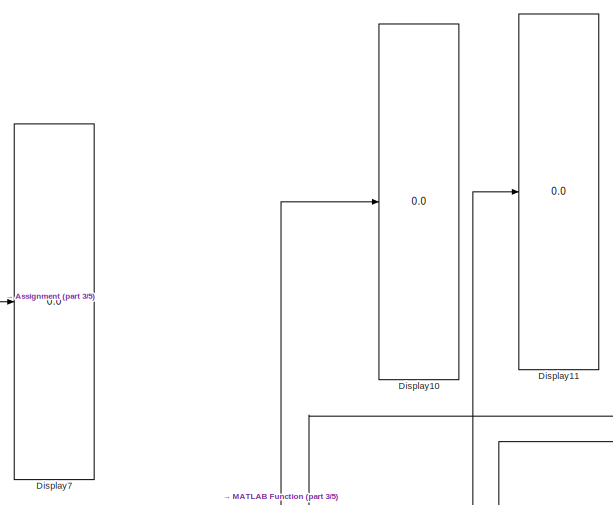
[diagram: root canvas - part 1/5, top center region]
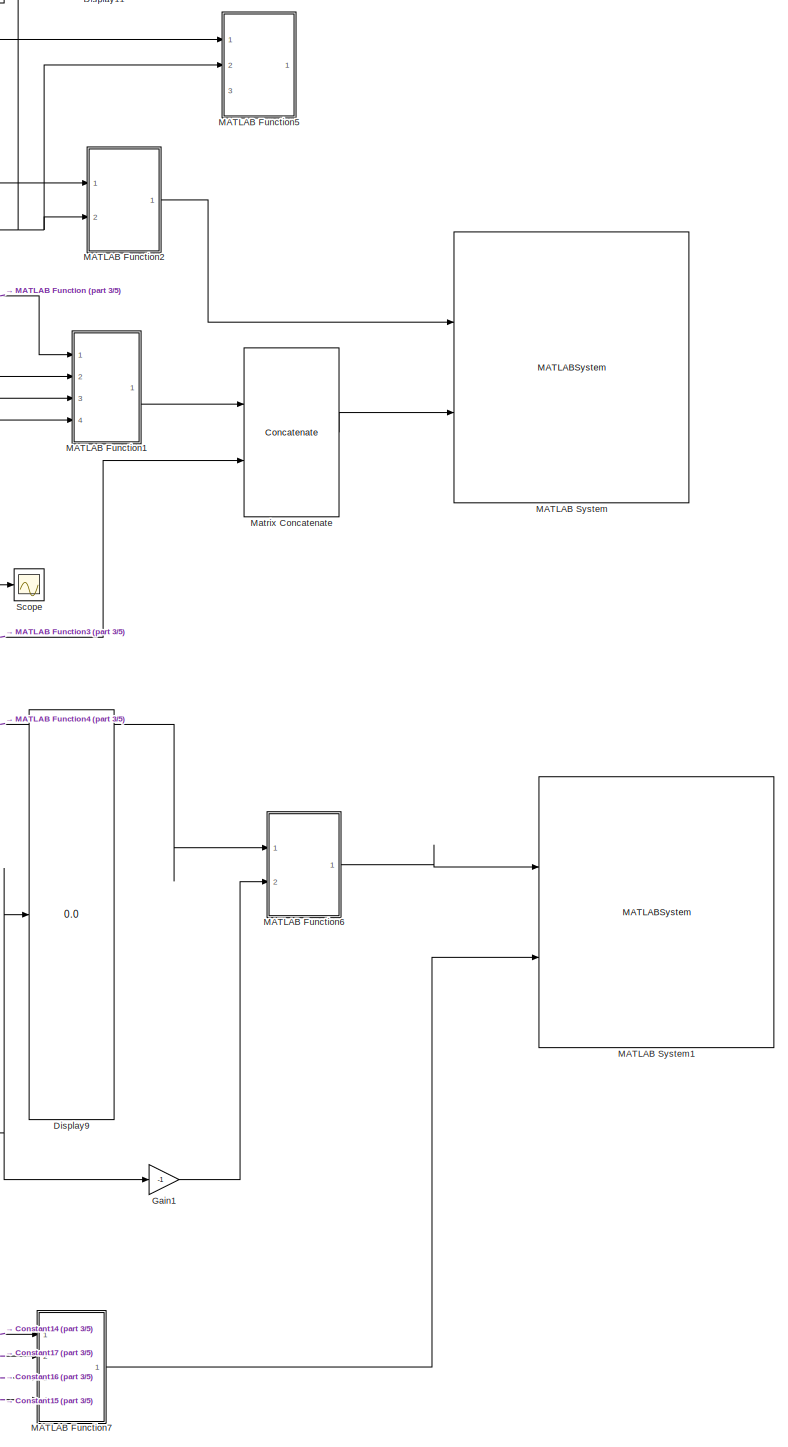
[diagram: root canvas - part 2/5, right side, full height]
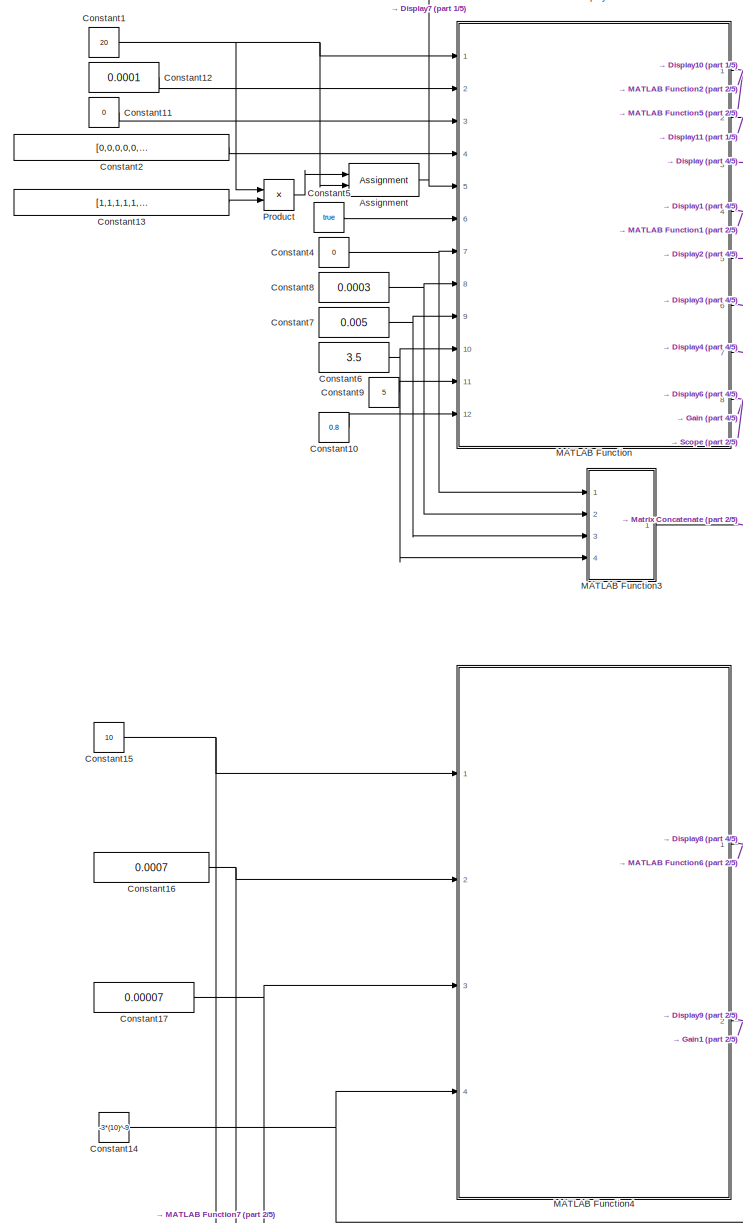
[diagram: root canvas - part 3/5, central region]
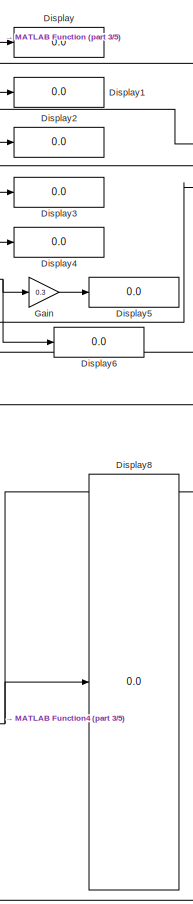
[diagram: root canvas - part 4/5, central region]
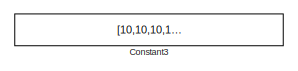
[diagram: root canvas - part 5/5, middle left region]
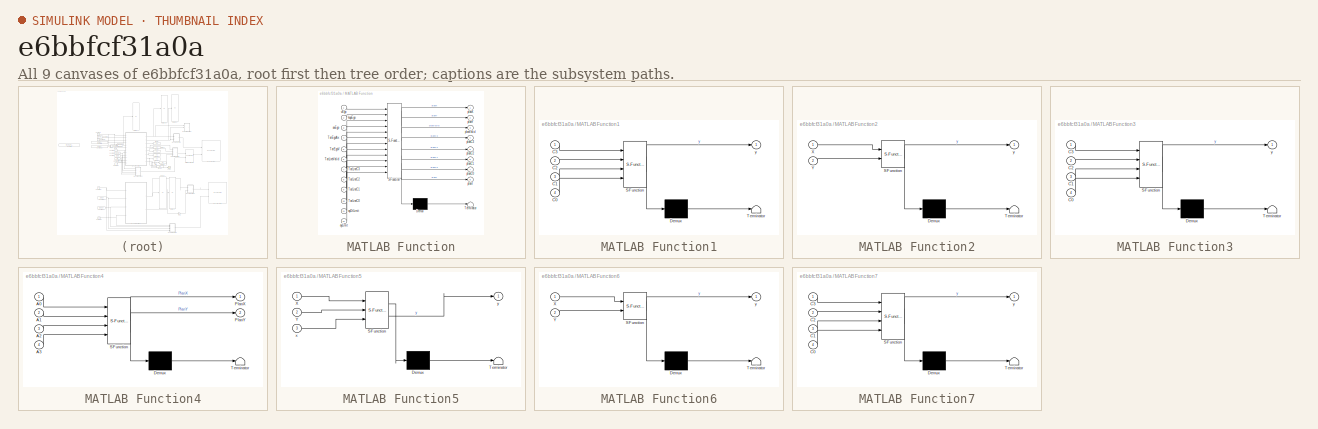
[diagram: thumbnail index - all 9 canvases of the model, root first then tree order]
MODEL slx_e6bbfcf31a0a
KIND model
CONFIG AbsTol = auto
CONFIG EnableMultiTasking = off
CONFIG FixedStep = 0.02
CONFIG MaxStep = auto
CONFIG MinStep = auto
CONFIG RelTol = 1e-3
CONFIG SampleTimeConstraint = Unconstrained
CONFIG SolverName = FixedStepAuto
CONFIG StartTime = 0.0
CONFIG StopTime = inf
BLOCK [Assignment] Assignment
  DiagnosticForDimensions = Warning
  IndexOptions = Assign all
  Indices = 2
  OutputSizes = 1
  Ports = [2, 1]
BLOCK [Constant] Constant1
  Value = 20
BLOCK [Constant] Constant10
  Value = 0.8
BLOCK [Constant] Constant11
  Value = 0
BLOCK [Constant] Constant12
  Value = 0.0001
BLOCK [Constant] Constant13
  Value = [1,1,1,1,1,1,1,1,1,1,1,1,1,1,1,1,1]
BLOCK [Constant] Constant14
  Value = -3*(10)^-9
BLOCK [Constant] Constant15
  Value = 10
BLOCK [Constant] Constant16
  Value = 0.0007
BLOCK [Constant] Constant17
  Value = 0.00007
BLOCK [Constant] Constant2
  Value = [0,0,0,0,0,0,0,0,0,0,0,0,0,0,0,0,0]
BLOCK [Constant] Constant3
  Value = [10,10,10,10,10,10,10,10,10,10,10,10,10,10,10,10,10]
BLOCK [Constant] Constant4
  Value = 0
BLOCK [Constant] Constant5
  Value = true
BLOCK [Constant] Constant6
  Value = 3.5
BLOCK [Constant] Constant7
  Value = 0.005
BLOCK [Constant] Constant8
  Value = 0.0003
BLOCK [Constant] Constant9
  Value = 5
BLOCK [Display] Display
  Decimation = 1
  Ports = [1]
BLOCK [Display] Display1
  Decimation = 1
  Ports = [1]
BLOCK [Display] Display10
  Decimation = 1
  Ports = [1]
BLOCK [Display] Display11
  Decimation = 1
  Ports = [1]
BLOCK [Display] Display2
  Decimation = 1
  Ports = [1]
BLOCK [Display] Display3
  Decimation = 1
  Ports = [1]
BLOCK [Display] Display4
  Decimation = 1
  Ports = [1]
BLOCK [Display] Display5
  Decimation = 1
  Ports = [1]
BLOCK [Display] Display6
  Decimation = 1
  Ports = [1]
BLOCK [Display] Display7
  Decimation = 1
  Ports = [1]
BLOCK [Display] Display8
  Decimation = 1
  Ports = [1]
BLOCK [Display] Display9
  Decimation = 1
  Ports = [1]
BLOCK [Gain] Gain
  Gain = 0.3
BLOCK [Gain] Gain1
  Gain = -1
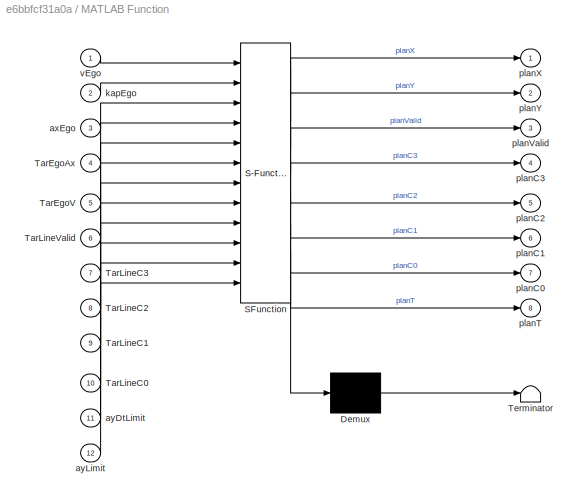
BLOCK [SubSystem] MATLAB Function
  ErrorFcn = Stateflow.Translate.translate
  PermitHierarchicalResolution = ExplicitOnly
  Ports = [12, 8]
  RequestExecContextInheritance = off
  SFBlockType = MATLAB Function
  TreatAsAtomicUnit = on
BLOCK [Demux] MATLAB Function/ Demux 
  Outputs = 1
  Ports = [1, 1]
BLOCK [S-Function] MATLAB Function/ SFunction 
  EnableBusSupport = on
  FunctionName = sf_sfun
  PortCounts = [12 9]
  Ports = [12, 9]
  SFcnIsStateOwnerBlock = off
  SFunctionDeploymentMode = off
  Tag = Stateflow S-Function 2
BLOCK [Terminator] MATLAB Function/ Terminator 
BLOCK [Inport] MATLAB Function/TarEgoAx
  Port = 4
BLOCK [Inport] MATLAB Function/TarEgoV
  Port = 5
BLOCK [Inport] MATLAB Function/TarLineC0
  Port = 10
BLOCK [Inport] MATLAB Function/TarLineC1
  Port = 9
BLOCK [Inport] MATLAB Function/TarLineC2
  Port = 8
BLOCK [Inport] MATLAB Function/TarLineC3
  Port = 7
BLOCK [Inport] MATLAB Function/TarLineValid
  Port = 6
BLOCK [Inport] MATLAB Function/axEgo
  Port = 3
BLOCK [Inport] MATLAB Function/ayDtLimit
  Port = 11
BLOCK [Inport] MATLAB Function/ayLimit
  Port = 12
BLOCK [Inport] MATLAB Function/kapEgo
  Port = 2
BLOCK [Outport] MATLAB Function/planC0
  Port = 7
BLOCK [Outport] MATLAB Function/planC1
  Port = 6
BLOCK [Outport] MATLAB Function/planC2
  Port = 5
BLOCK [Outport] MATLAB Function/planC3
  Port = 4
BLOCK [Outport] MATLAB Function/planT
  Port = 8
BLOCK [Outport] MATLAB Function/planValid
  Port = 3
BLOCK [Outport] MATLAB Function/planX
BLOCK [Outport] MATLAB Function/planY
  Port = 2
BLOCK [Inport] MATLAB Function/vEgo
BLOCK [SubSystem] MATLAB Function1
  ErrorFcn = Stateflow.Translate.translate
  PermitHierarchicalResolution = ExplicitOnly
  Ports = [4, 1]
  RequestExecContextInheritance = off
  SFBlockType = MATLAB Function
  TreatAsAtomicUnit = on
BLOCK [Demux] MATLAB Function1/ Demux 
  Outputs = 1
  Ports = [1, 1]
BLOCK [S-Function] MATLAB Function1/ SFunction 
  EnableBusSupport = on
  FunctionName = sf_sfun
  PortCounts = [4 2]
  Ports = [4, 2]
  SFcnIsStateOwnerBlock = off
  SFunctionDeploymentMode = off
  Tag = Stateflow S-Function 1
BLOCK [Terminator] MATLAB Function1/ Terminator 
BLOCK [Inport] MATLAB Function1/C0
  Port = 4
BLOCK [Inport] MATLAB Function1/C1
  Port = 3
BLOCK [Inport] MATLAB Function1/C2
  Port = 2
BLOCK [Inport] MATLAB Function1/C3
BLOCK [Outport] MATLAB Function1/y
BLOCK [SubSystem] MATLAB Function2
  ErrorFcn = Stateflow.Translate.translate
  PermitHierarchicalResolution = ExplicitOnly
  Ports = [2, 1]
  RequestExecContextInheritance = off
  SFBlockType = MATLAB Function
  TreatAsAtomicUnit = on
BLOCK [Demux] MATLAB Function2/ Demux 
  Outputs = 1
  Ports = [1, 1]
BLOCK [S-Function] MATLAB Function2/ SFunction 
  EnableBusSupport = on
  FunctionName = sf_sfun
  PortCounts = [2 2]
  Ports = [2, 2]
  SFcnIsStateOwnerBlock = off
  SFunctionDeploymentMode = off
  Tag = Stateflow S-Function 3
BLOCK [Terminator] MATLAB Function2/ Terminator 
BLOCK [Inport] MATLAB Function2/X
BLOCK [Inport] MATLAB Function2/Y
  Port = 2
BLOCK [Outport] MATLAB Function2/y
BLOCK [SubSystem] MATLAB Function3
  ErrorFcn = Stateflow.Translate.translate
  PermitHierarchicalResolution = ExplicitOnly
  Ports = [4, 1]
  RequestExecContextInheritance = off
  SFBlockType = MATLAB Function
  TreatAsAtomicUnit = on
BLOCK [Demux] MATLAB Function3/ Demux 
  Outputs = 1
  Ports = [1, 1]
BLOCK [S-Function] MATLAB Function3/ SFunction 
  EnableBusSupport = on
  FunctionName = sf_sfun
  PortCounts = [4 2]
  Ports = [4, 2]
  SFcnIsStateOwnerBlock = off
  SFunctionDeploymentMode = off
  Tag = Stateflow S-Function 4
BLOCK [Terminator] MATLAB Function3/ Terminator 
BLOCK [Inport] MATLAB Function3/C0
  Port = 4
BLOCK [Inport] MATLAB Function3/C1
  Port = 3
BLOCK [Inport] MATLAB Function3/C2
  Port = 2
BLOCK [Inport] MATLAB Function3/C3
BLOCK [Outport] MATLAB Function3/y
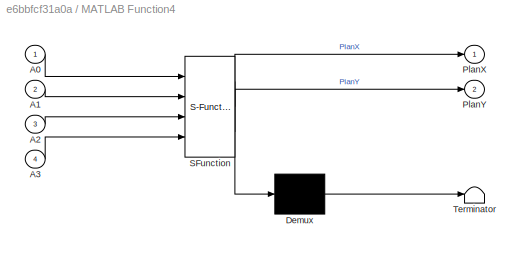
BLOCK [SubSystem] MATLAB Function4
  ErrorFcn = Stateflow.Translate.translate
  PermitHierarchicalResolution = ExplicitOnly
  Ports = [4, 2]
  RequestExecContextInheritance = off
  SFBlockType = MATLAB Function
  TreatAsAtomicUnit = on
BLOCK [Demux] MATLAB Function4/ Demux 
  Outputs = 1
  Ports = [1, 1]
BLOCK [S-Function] MATLAB Function4/ SFunction 
  EnableBusSupport = on
  FunctionName = sf_sfun
  PortCounts = [4 3]
  Ports = [4, 3]
  SFcnIsStateOwnerBlock = off
  SFunctionDeploymentMode = off
  Tag = Stateflow S-Function 5
BLOCK [Terminator] MATLAB Function4/ Terminator 
BLOCK [Inport] MATLAB Function4/A0
BLOCK [Inport] MATLAB Function4/A1
  Port = 2
BLOCK [Inport] MATLAB Function4/A2
  Port = 3
BLOCK [Inport] MATLAB Function4/A3
  Port = 4
BLOCK [Outport] MATLAB Function4/PlanX
BLOCK [Outport] MATLAB Function4/PlanY
  Port = 2
BLOCK [SubSystem] MATLAB Function5
  ErrorFcn = Stateflow.Translate.translate
  PermitHierarchicalResolution = ExplicitOnly
  Ports = [3, 1]
  RequestExecContextInheritance = off
  SFBlockType = MATLAB Function
  TreatAsAtomicUnit = on
BLOCK [Demux] MATLAB Function5/ Demux 
  Outputs = 1
  Ports = [1, 1]
BLOCK [S-Function] MATLAB Function5/ SFunction 
  EnableBusSupport = on
  FunctionName = sf_sfun
  PortCounts = [3 2]
  Ports = [3, 2]
  SFcnIsStateOwnerBlock = off
  SFunctionDeploymentMode = off
  Tag = Stateflow S-Function 6
BLOCK [Terminator] MATLAB Function5/ Terminator 
BLOCK [Inport] MATLAB Function5/X
BLOCK [Inport] MATLAB Function5/Y
  Port = 2
BLOCK [Inport] MATLAB Function5/x
  Port = 3
BLOCK [Outport] MATLAB Function5/y
BLOCK [SubSystem] MATLAB Function6
  ErrorFcn = Stateflow.Translate.translate
  PermitHierarchicalResolution = ExplicitOnly
  Ports = [2, 1]
  RequestExecContextInheritance = off
  SFBlockType = MATLAB Function
  TreatAsAtomicUnit = on
BLOCK [Demux] MATLAB Function6/ Demux 
  Outputs = 1
  Ports = [1, 1]
BLOCK [S-Function] MATLAB Function6/ SFunction 
  EnableBusSupport = on
  FunctionName = sf_sfun
  PortCounts = [2 2]
  Ports = [2, 2]
  SFcnIsStateOwnerBlock = off
  SFunctionDeploymentMode = off
  Tag = Stateflow S-Function 7
BLOCK [Terminator] MATLAB Function6/ Terminator 
BLOCK [Inport] MATLAB Function6/X
BLOCK [Inport] MATLAB Function6/Y
  Port = 2
BLOCK [Outport] MATLAB Function6/y
BLOCK [SubSystem] MATLAB Function7
  ErrorFcn = Stateflow.Translate.translate
  PermitHierarchicalResolution = ExplicitOnly
  Ports = [4, 1]
  RequestExecContextInheritance = off
  SFBlockType = MATLAB Function
  TreatAsAtomicUnit = on
BLOCK [Demux] MATLAB Function7/ Demux 
  Outputs = 1
  Ports = [1, 1]
BLOCK [S-Function] MATLAB Function7/ SFunction 
  EnableBusSupport = on
  FunctionName = sf_sfun
  PortCounts = [4 2]
  Ports = [4, 2]
  SFcnIsStateOwnerBlock = off
  SFunctionDeploymentMode = off
  Tag = Stateflow S-Function 8
BLOCK [Terminator] MATLAB Function7/ Terminator 
BLOCK [Inport] MATLAB Function7/C0
  Port = 4
BLOCK [Inport] MATLAB Function7/C1
  Port = 3
BLOCK [Inport] MATLAB Function7/C2
  Port = 2
BLOCK [Inport] MATLAB Function7/C3
BLOCK [Outport] MATLAB Function7/y
BLOCK [MATLABSystem] MATLAB System
  ActorsColor = off
  Camera_Fov = 52
  Camera_Pos = [ 0, 0 ]
  Camera_Range = 100
  Camera_Yaw = 0
  HasActors = off
  HasLaneMarkings = off
  HasRadar = on
  HasRoads = on
  HasVision = off
  LabelFontSize = 9
  LabelOffset = [ 1.5, 1.5 ]
  MarkerSize = 8
  MaskDisplay = disp(['Bird''s-Eye' char(10) 'View']);\nport_label('input',1,'Radar');\nport_label('input',2,'Roads');
  MaskType = BirdsEyeView17a
  Ports = [2]
  Radar_Fov = 52
  Radar_Pos = [ 0, 0 ]
  Radar_Range = 100
  Radar_Yaw = 0
  System = BirdsEyeView17a
  XLim = [ 0, 120 ]
  YLim = [ -30, 30 ]
  aspectratio = off
BLOCK [MATLABSystem] MATLAB System1
  ActorsColor = off
  Camera_Fov = 52
  Camera_Pos = [ 0, 0 ]
  Camera_Range = 100
  Camera_Yaw = 0
  HasActors = off
  HasLaneMarkings = off
  HasRadar = on
  HasRoads = on
  HasVision = off
  LabelFontSize = 9
  LabelOffset = [ 1.5, 1.5 ]
  MarkerSize = 8
  MaskDisplay = disp(['Bird''s-Eye' char(10) 'View']);\nport_label('input',1,'Radar');\nport_label('input',2,'Roads');
  MaskType = BirdsEyeView17a
  Ports = [2]
  Radar_Fov = 52
  Radar_Pos = [ 0, 0 ]
  Radar_Range = 100
  Radar_Yaw = 0
  System = BirdsEyeView17a
  XLim = [ 0, 120 ]
  YLim = [ -30, 30 ]
  aspectratio = off
BLOCK [Concatenate] Matrix Concatenate
  Mode = Multidimensional array
  Ports = [2, 1]
BLOCK [Product] Product
  Ports = [2, 1]
BLOCK [Scope] Scope
  Floating = off
  NumInputPorts = 1
  Ports = [1]
  ScopeSpecificationString = Simulink.scopes.TimeScopeBlockCfg('CurrentConfiguration', extmgr.ConfigurationSet(extmgr.Configuration('Core','General UI',true),extmgr.Configuration('Core','Source UI',true),extmgr.Configuration('Sources','WiredSimulink',true),extmgr.Configuration('Visuals','Time Domain',true,'SerializedDisplays',{struct('MinYLimReal','0.51892','MaxYLimReal','20.51892','YLabelReal','','MinYLimMag','0.51892','MaxY...<+1372ch>
NET Assignment:1 -> Display7:1, MATLAB Function:5
LINE Constant10:1 -> MATLAB Function:12
LINE Constant11:1 -> MATLAB Function:3
LINE Constant12:1 -> MATLAB Function:2
LINE Constant13:1 -> Product:2
NET Constant14:1 -> MATLAB Function4:4, MATLAB Function7:1
NET Constant15:1 -> MATLAB Function4:1, MATLAB Function7:4
NET Constant16:1 -> MATLAB Function4:2, MATLAB Function7:3
NET Constant17:1 -> MATLAB Function4:3, MATLAB Function7:2
NET Constant1:1 -> Assignment:2, MATLAB Function:1, Product:1
LINE Constant2:1 -> MATLAB Function:4
NET Constant4:1 -> MATLAB Function3:1, MATLAB Function:7
LINE Constant5:1 -> MATLAB Function:6
NET Constant6:1 -> MATLAB Function3:4, MATLAB Function:10
NET Constant7:1 -> MATLAB Function3:3, MATLAB Function:9
NET Constant8:1 -> MATLAB Function3:2, MATLAB Function:8
LINE Constant9:1 -> MATLAB Function:11
LINE Gain1:1 -> MATLAB Function6:2
LINE Gain:1 -> Display5:1
LINE MATLAB Function1:1 -> Matrix Concatenate:1
LINE MATLAB Function2:1 -> MATLAB System:1
LINE MATLAB Function3:1 -> Matrix Concatenate:2
NET MATLAB Function4:1 -> Display8:1, MATLAB Function6:1
NET MATLAB Function4:2 -> Display9:1, Gain1:1
LINE MATLAB Function6:1 -> MATLAB System1:1
LINE MATLAB Function7:1 -> MATLAB System1:2
NET MATLAB Function:1 -> Display10:1, MATLAB Function2:1, MATLAB Function5:1
NET MATLAB Function:2 -> Display11:1, MATLAB Function2:2, MATLAB Function5:2
LINE MATLAB Function:3 -> Display:1
NET MATLAB Function:4 -> Display1:1, MATLAB Function1:1
NET MATLAB Function:5 -> Display2:1, MATLAB Function1:2
NET MATLAB Function:6 -> Display3:1, MATLAB Function1:3
NET MATLAB Function:7 -> Display4:1, MATLAB Function1:4
NET MATLAB Function:8 -> Display6:1, Gain:1, Scope:1
LINE Matrix Concatenate:1 -> MATLAB System:2
LINE Product:1 -> Assignment:1
note: NET lines group one-source signal fan-out (src -> all destinations, sorted); 1:1 wires keep LINE
CHART MATLAB Function7 states=1 transitions=1
  STATE_LABEL 'eML_blk_kernel()'
  STATE_LABEL 'SCRIPT:\nfunction y = line(C3,C2,C1,C0)\n\ny = zeros(1,9);\ny(1,1) = C3;\ny(1,2) = C2;\ny(1,3) = C1;\ny(1,4) = C0;\ny(1,5) = 0;\ny(1,6) = 250;\ny(1,7) = 0;\ny(1,8) = 0;\ny(1,9) = 1;\n\n'
CHART MATLAB Function1 states=1 transitions=1
  STATE_LABEL 'eML_blk_kernel()'
  STATE_LABEL 'SCRIPT:\nfunction y = line(C3,C2,C1,C0)\n\ny = zeros(1,9);\ny(1,1) = C3;\ny(1,2) = C2;\ny(1,3) = C1;\ny(1,4) = C0;\ny(1,5) = 0;\ny(1,6) = 100;\ny(1,7) = 0;\ny(1,8) = 0;\ny(1,9) = 1;\n\n'
CHART MATLAB Function states=1 transitions=1
  STATE_LABEL 'eML_blk_kernel()'
  STATE_LABEL 'SCRIPT:\nfunction [planX,planY,planValid,planC3,planC2,planC1,planC0,planT] = ...\n    linePlanCalc(vEgo,kapEgo,axEgo,TarEgoAx,TarEgoV,...\n    TarLineValid,TarLineC3,TarLineC2,TarLineC1,TarLineC0,...\n    ayDtLimit,ayLimit)\n\n%    x(t) = a5*t^5 + a4*t^4 + a3*t^3 + a2*t^2 + a1*t + a0;\n%    y(t) = b5*t^5 + b4*t^4 + b3*t^3 + b2*t^2 + b1*t + b0;\n%    A = [a5;a4;a3;a2;a1;a0];\n%    B = [b5;b4;b3;b2;b1;b0];\n...<+3608ch>'
CHART MATLAB Function2 states=1 transitions=1
  STATE_LABEL 'eML_blk_kernel()'
  STATE_LABEL 'SCRIPT:\nfunction y = line(X,Y)\n\ny = zeros(11,8);\nfor i=1:11\n    y(i,1) = X(i);\n    y(i,2) = Y(i);\n    y(i,3) = 1;\n    y(i,4) = 0;\n    y(i,5) = 0;\n    y(i,6) = i;\n    y(i,7) = 1;\n    y(i,8) = 1;\nend\n'
CHART MATLAB Function3 states=1 transitions=1
  STATE_LABEL 'eML_blk_kernel()'
  STATE_LABEL 'SCRIPT:\nfunction y = line(C3,C2,C1,C0)\n\ny = zeros(1,9);\ny(1,1) = C3;\ny(1,2) = C2;\ny(1,3) = C1;\ny(1,4) = C0;\ny(1,5) = 0;\ny(1,6) = 250;\ny(1,7) = 0;\ny(1,8) = 0;\ny(1,9) = 1;\n\n'
CHART MATLAB Function4 states=1 transitions=1
  STATE_LABEL 'eML_blk_kernel()'
  STATE_LABEL "SCRIPT:\nfunction [PlanX,PlanY]= fcn(A0,A1,A2,A3)\n% 参考线离散化\nrx1 = [single(0):single(1):single(9)];\nrx2 = [single(10):20:150];\nrx = cat(2,rx1,rx2);\nry = single((-1)).*(A0 + A1.* rx + A2.* (rx.^2) + A3.* (rx.^3));\nwaypoints = [ry',rx'];\nreferencePath = FrenentReferencePath(waypoints,5);\npathStart = referencePath.interpolate(0);% 求起始点处车辆状态 [x, y,theta, kappa, dkappa, s]\ninitialState=[0 -A0 pathStart(1,...<+517ch>"
CHART MATLAB Function5 states=1 transitions=1
  STATE_LABEL 'eML_blk_kernel()'
  STATE_LABEL "SCRIPT:\nfunction y = line(X,Y,x)\ny =interp1(X,Y,x,'linear');\nend"
CHART MATLAB Function6 states=1 transitions=1
  STATE_LABEL 'eML_blk_kernel()'
  STATE_LABEL 'SCRIPT:\nfunction y = line(X,Y)\n\ny = zeros(20,8);\nfor i=1:20\n    y(i,1) = X(i);\n    y(i,2) = Y(i);\n    y(i,3) = 1;\n    y(i,4) = 0;\n    y(i,5) = 0;\n    y(i,6) = i;\n    y(i,7) = 1;\n    y(i,8) = 1;\nend\n'
CHART  states=0 transitions=0
CHART  states=0 transitions=0
CHART  states=0 transitions=0
CHART  states=0 transitions=0
CHART  states=0 transitions=0
CHART  states=0 transitions=0
CHART  states=0 transitions=0
CHART  states=0 transitions=0
